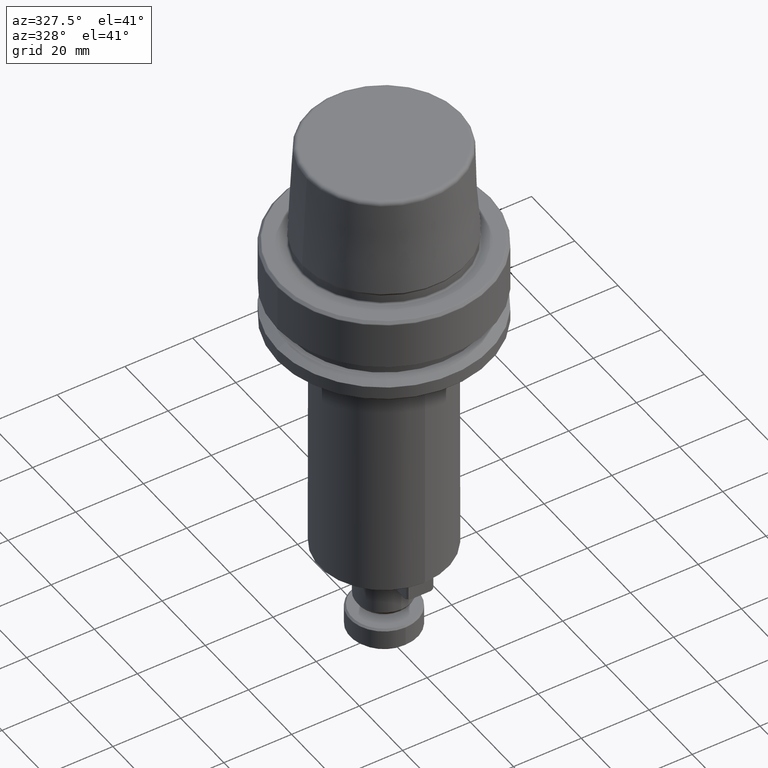
[diagram: clean part render]
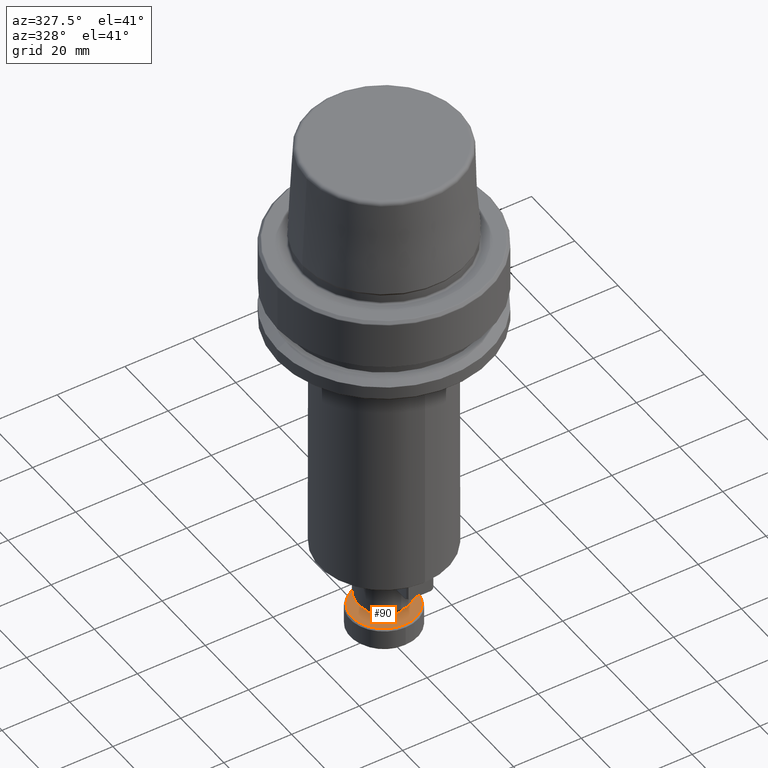
[diagram: same view with one face highlighted and labeled with its STEP entity id]
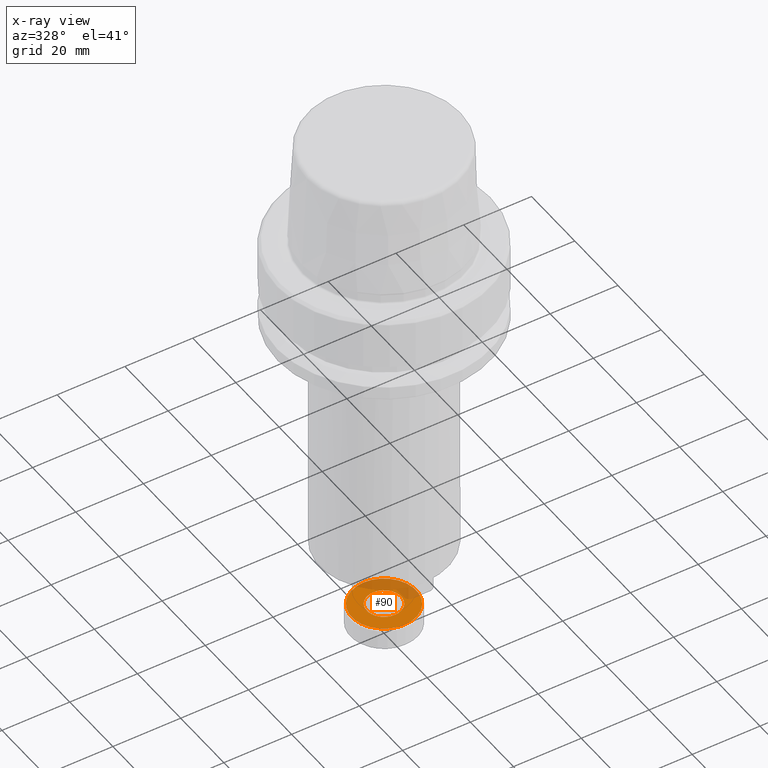
[diagram: x-ray of the same camera — body ghosted, the highlighted face saturated]
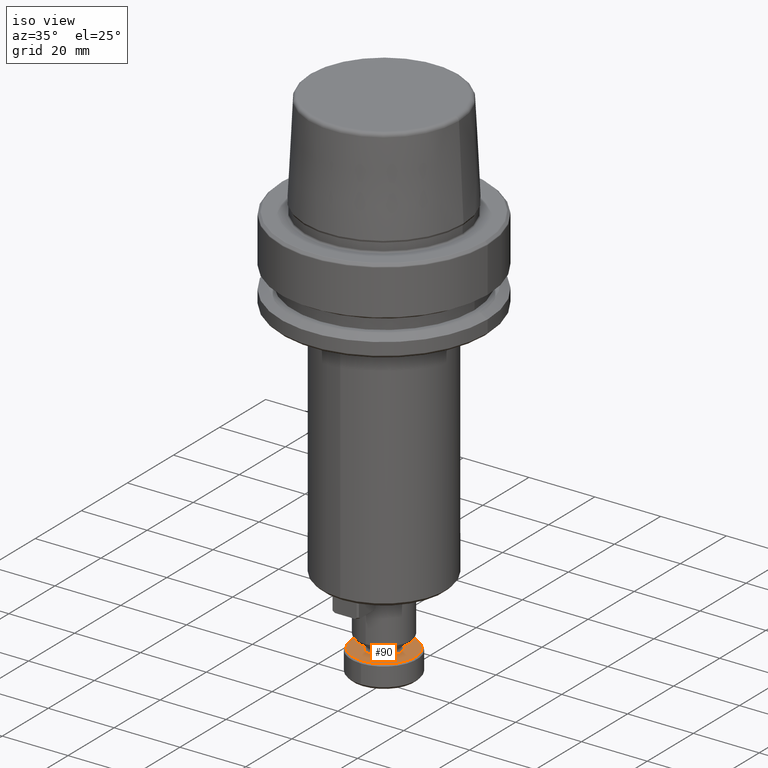
[diagram: same view with one face highlighted and labeled with its STEP entity id]
A machine part, auxiliary view. The second image highlights one B-rep face of the part: STEP entity #90.
The next image is the same camera in x-ray: the body ghosted, the highlighted face saturated — about 29% of this face is hidden behind the body in this view.
A second angle (iso view) of the same face is appended — the face is thin or edge-on in the first view.
In plain terms, the highlighted planar face has unit normal (0, 0, -1).
Its self-contained STEP definition (entity closure, byte-faithful):
#17 = CARTESIAN_POINT ( 'NONE',  ( 0.0000000000000000000, -1.252919954794667100E-015, -120.0000000000000000 ) ) ;
#83 = DIRECTION ( 'NONE',  ( 0.0000000000000000000, 1.262603169777726300E-017, -1.000000000000000000 ) ) ;
#90 = ADVANCED_FACE ( 'NONE', ( #1427, #1496 ), #1123, .F. ) ;
#353 = DIRECTION ( 'NONE',  ( 0.0000000000000000000, 1.262603169777726300E-017, -1.000000000000000000 ) ) ;
#357 = EDGE_CURVE ( 'NONE', #1396, #879, #2565, .T. ) ;
#670 = DIRECTION ( 'NONE',  ( 0.0000000000000000000, 1.000000000000000000, 0.0000000000000000000 ) ) ;
#695 = CARTESIAN_POINT ( 'NONE',  ( 0.0000000000000000000, 10.00000000000000000, -120.0000000000000000 ) ) ;
#741 = DIRECTION ( 'NONE',  ( -0.0000000000000000000, -1.262603169777726300E-017, 1.000000000000000000 ) ) ;
#860 = ORIENTED_EDGE ( 'NONE', *, *, #1151, .T. ) ;
#866 = ORIENTED_EDGE ( 'NONE', *, *, #1261, .T. ) ;
#879 = VERTEX_POINT ( 'NONE', #1138 ) ;
#895 = EDGE_LOOP ( 'NONE', ( #2003, #1909 ) ) ;
#958 = DIRECTION ( 'NONE',  ( 0.0000000000000000000, 1.000000000000000000, 0.0000000000000000000 ) ) ;
#1123 = PLANE ( 'NONE',  #1218 ) ;
#1138 = CARTESIAN_POINT ( 'NONE',  ( 6.184466335694136000E-016, -5.050000000000002500, -120.0000000000000000 ) ) ;
#1151 = EDGE_CURVE ( 'NONE', #1679, #2759, #2084, .T. ) ;
#1218 = AXIS2_PLACEMENT_3D ( 'NONE', #695, #1827, #2726 ) ;
#1237 = CIRCLE ( 'NONE', #2010, 9.499999999999998200 ) ;
#1261 = EDGE_CURVE ( 'NONE', #2759, #1679, #1237, .T. ) ;
#1265 = AXIS2_PLACEMENT_3D ( 'NONE', #1301, #83, #1768 ) ;
#1288 = AXIS2_PLACEMENT_3D ( 'NONE', #17, #2192, #670 ) ;
#1301 = CARTESIAN_POINT ( 'NONE',  ( 0.0000000000000000000, -1.252919954794667100E-015, -120.0000000000000000 ) ) ;
#1335 = EDGE_LOOP ( 'NONE', ( #866, #860 ) ) ;
#1339 = AXIS2_PLACEMENT_3D ( 'NONE', #1851, #353, #2329 ) ;
#1350 = CARTESIAN_POINT ( 'NONE',  ( 0.0000000000000000000, -1.252919954794667100E-015, -120.0000000000000000 ) ) ;
#1396 = VERTEX_POINT ( 'NONE', #1546 ) ;
#1427 = FACE_BOUND ( 'NONE', #895, .T. ) ;
#1441 = CIRCLE ( 'NONE', #1265, 5.050000000000001600 ) ;
#1496 = FACE_OUTER_BOUND ( 'NONE', #1335, .T. ) ;
#1546 = CARTESIAN_POINT ( 'NONE',  ( 0.0000000000000000000, 5.050000000000000700, -120.0000000000000000 ) ) ;
#1679 = VERTEX_POINT ( 'NONE', #2163 ) ;
#1680 = EDGE_CURVE ( 'NONE', #879, #1396, #1441, .T. ) ;
#1768 = DIRECTION ( 'NONE',  ( 0.0000000000000000000, 1.000000000000000000, 0.0000000000000000000 ) ) ;
#1827 = DIRECTION ( 'NONE',  ( 0.0000000000000000000, 1.262603169777726300E-017, -1.000000000000000000 ) ) ;
#1851 = CARTESIAN_POINT ( 'NONE',  ( 0.0000000000000000000, -1.252919954794667100E-015, -120.0000000000000000 ) ) ;
#1909 = ORIENTED_EDGE ( 'NONE', *, *, #1680, .T. ) ;
#1992 = CARTESIAN_POINT ( 'NONE',  ( 0.0000000000000000000, 9.499999999999996400, -120.0000000000000000 ) ) ;
#2003 = ORIENTED_EDGE ( 'NONE', *, *, #357, .T. ) ;
#2010 = AXIS2_PLACEMENT_3D ( 'NONE', #1350, #741, #958 ) ;
#2084 = CIRCLE ( 'NONE', #1288, 9.499999999999998200 ) ;
#2163 = CARTESIAN_POINT ( 'NONE',  ( 1.194030629168669500E-015, -9.500000000000000000, -120.0000000000000000 ) ) ;
#2192 = DIRECTION ( 'NONE',  ( -0.0000000000000000000, -1.262603169777726300E-017, 1.000000000000000000 ) ) ;
#2329 = DIRECTION ( 'NONE',  ( 0.0000000000000000000, 1.000000000000000000, 0.0000000000000000000 ) ) ;
#2565 = CIRCLE ( 'NONE', #1339, 5.050000000000001600 ) ;
#2726 = DIRECTION ( 'NONE',  ( 0.0000000000000000000, 1.000000000000000000, 1.262603169777726300E-017 ) ) ;
#2759 = VERTEX_POINT ( 'NONE', #1992 ) ;